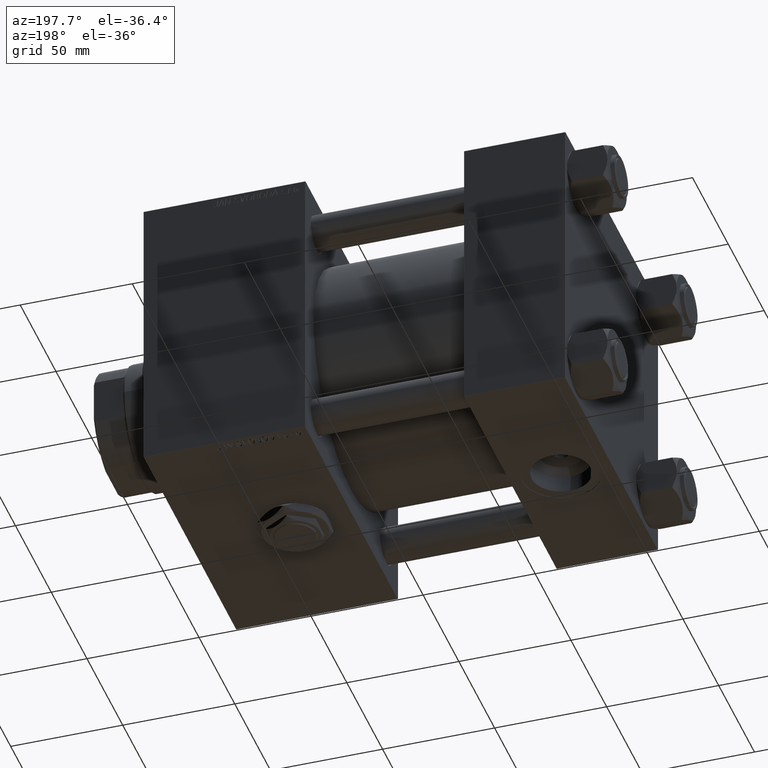
[diagram: clean part render]
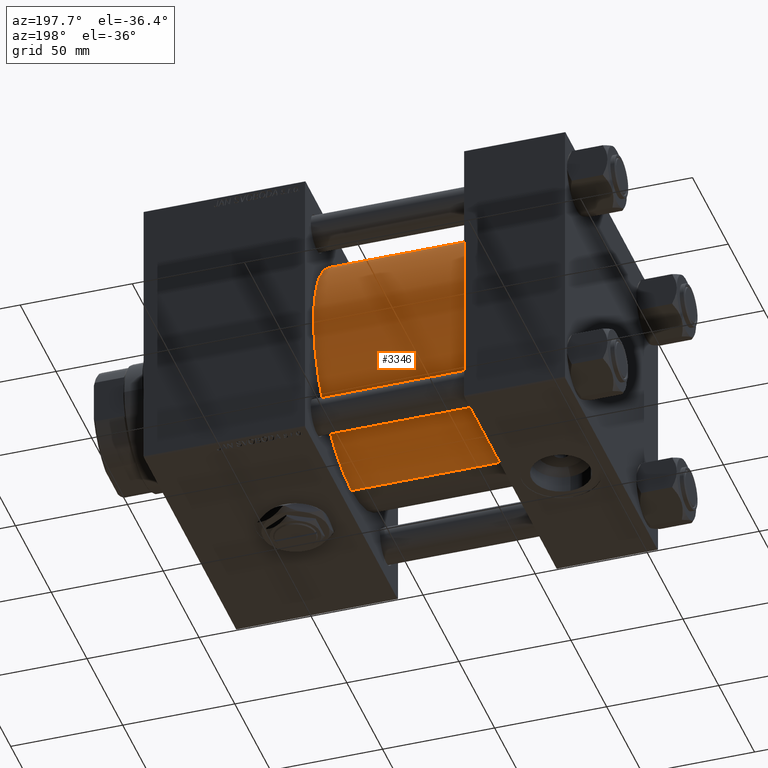
[diagram: same view with one face highlighted and labeled with its STEP entity id]
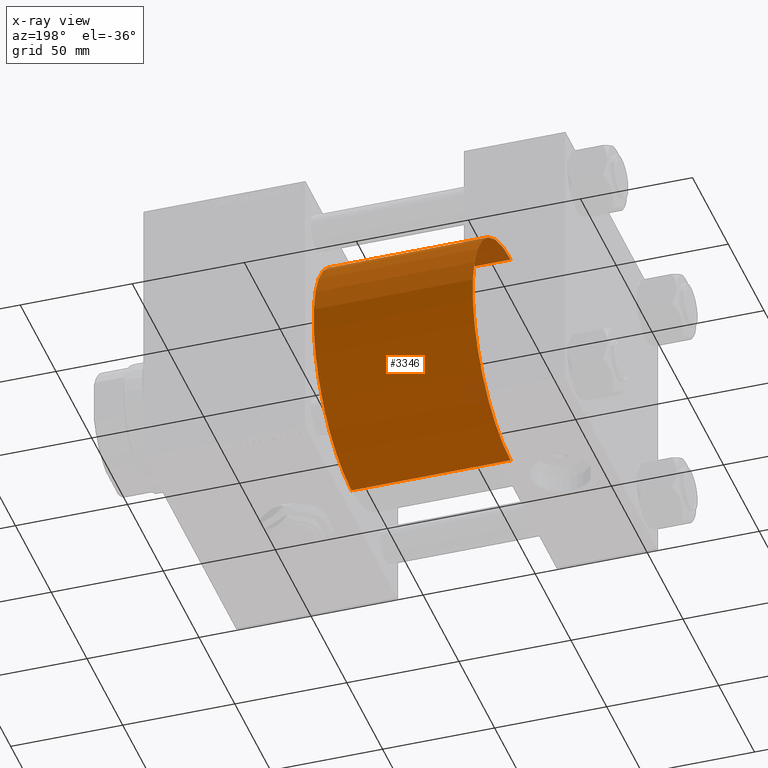
[diagram: x-ray of the same camera — body ghosted, the highlighted face saturated]
A machine part, auxiliary view. The second image highlights one B-rep face of the part: STEP entity #3346.
The next image is the same camera in x-ray: the body ghosted, the highlighted face saturated — about 3% of this face is hidden behind the body in this view.
In plain terms, the highlighted cylindrical surface (partial cylindrical patch) has radius 53 mm, axis along (-1, -0, -0).
Its self-contained STEP definition (entity closure, byte-faithful):
#1958 = CARTESIAN_POINT ( 'NONE',  ( 115.9999999999999858, -2.602085213965210642E-15, 53.00000000000000711 ) ) ;
#3346 = ADVANCED_FACE ( 'NONE', ( #32440 ), #45546, .T. ) ;
#4171 = VERTEX_POINT ( 'NONE', #35163 ) ;
#4234 = LINE ( 'NONE', #40669, #50536 ) ;
#5685 = CARTESIAN_POINT ( 'NONE',  ( 45.00000000000000000, -2.602085213965210642E-15, 53.00000000000000711 ) ) ;
#11648 = ORIENTED_EDGE ( 'NONE', *, *, #51322, .F. ) ;
#13237 = CIRCLE ( 'NONE', #43184, 53.00000000000000711 ) ;
#15081 = LINE ( 'NONE', #1958, #52551 ) ;
#15182 = EDGE_CURVE ( 'NONE', #4171, #42508, #44109, .T. ) ;
#16563 = DIRECTION ( 'NONE',  ( 0.000000000000000000, 0.000000000000000000, -1.000000000000000000 ) ) ;
#17142 = CARTESIAN_POINT ( 'NONE',  ( 115.9999999999999858, -2.602085213965210642E-15, 0.000000000000000000 ) ) ;
#20304 = DIRECTION ( 'NONE',  ( -1.000000000000000000, -0.000000000000000000, -0.000000000000000000 ) ) ;
#21759 = ORIENTED_EDGE ( 'NONE', *, *, #42663, .T. ) ;
#24105 = AXIS2_PLACEMENT_3D ( 'NONE', #17142, #41004, #49318 ) ;
#26146 = CARTESIAN_POINT ( 'NONE',  ( 115.9999999999999858, -2.602085213965210642E-15, 53.00000000000000711 ) ) ;
#29139 = DIRECTION ( 'NONE',  ( 1.000000000000000000, 0.000000000000000000, 0.000000000000000000 ) ) ;
#30362 = DIRECTION ( 'NONE',  ( -1.000000000000000000, -0.000000000000000000, -0.000000000000000000 ) ) ;
#31066 = ORIENTED_EDGE ( 'NONE', *, *, #15182, .T. ) ;
#32440 = FACE_OUTER_BOUND ( 'NONE', #51956, .T. ) ;
#33022 = VERTEX_POINT ( 'NONE', #26146 ) ;
#33970 = CARTESIAN_POINT ( 'NONE',  ( 45.00000000000000000, -2.602085213965210642E-15, 0.000000000000000000 ) ) ;
#34783 = CARTESIAN_POINT ( 'NONE',  ( 115.9999999999999858, 3.888542821515762466E-15, -53.00000000000000711 ) ) ;
#35163 = CARTESIAN_POINT ( 'NONE',  ( 45.00000000000000000, 3.888542821515762466E-15, -53.00000000000000711 ) ) ;
#35817 = VERTEX_POINT ( 'NONE', #34783 ) ;
#40660 = ORIENTED_EDGE ( 'NONE', *, *, #48492, .F. ) ;
#40669 = CARTESIAN_POINT ( 'NONE',  ( 115.9999999999999858, 3.888542821515762466E-15, -53.00000000000000711 ) ) ;
#41004 = DIRECTION ( 'NONE',  ( -1.000000000000000000, -0.000000000000000000, -0.000000000000000000 ) ) ;
#41202 = CARTESIAN_POINT ( 'NONE',  ( 115.9999999999999858, -2.602085213965210642E-15, 0.000000000000000000 ) ) ;
#42508 = VERTEX_POINT ( 'NONE', #5685 ) ;
#42663 = EDGE_CURVE ( 'NONE', #35817, #4171, #4234, .T. ) ;
#43184 = AXIS2_PLACEMENT_3D ( 'NONE', #41202, #29139, #16563 ) ;
#44109 = CIRCLE ( 'NONE', #50072, 53.00000000000000711 ) ;
#45546 = CYLINDRICAL_SURFACE ( 'NONE', #24105, 53.00000000000000711 ) ;
#48492 = EDGE_CURVE ( 'NONE', #35817, #33022, #13237, .T. ) ;
#49318 = DIRECTION ( 'NONE',  ( 0.000000000000000000, 0.000000000000000000, 1.000000000000000000 ) ) ;
#50072 = AXIS2_PLACEMENT_3D ( 'NONE', #33970, #50561, #51360 ) ;
#50536 = VECTOR ( 'NONE', #20304, 1000.000000000000000 ) ;
#50561 = DIRECTION ( 'NONE',  ( 1.000000000000000000, -0.000000000000000000, 0.000000000000000000 ) ) ;
#51322 = EDGE_CURVE ( 'NONE', #33022, #42508, #15081, .T. ) ;
#51360 = DIRECTION ( 'NONE',  ( 0.000000000000000000, 0.000000000000000000, 1.000000000000000000 ) ) ;
#51956 = EDGE_LOOP ( 'NONE', ( #40660, #21759, #31066, #11648 ) ) ;
#52551 = VECTOR ( 'NONE', #30362, 1000.000000000000000 ) ;